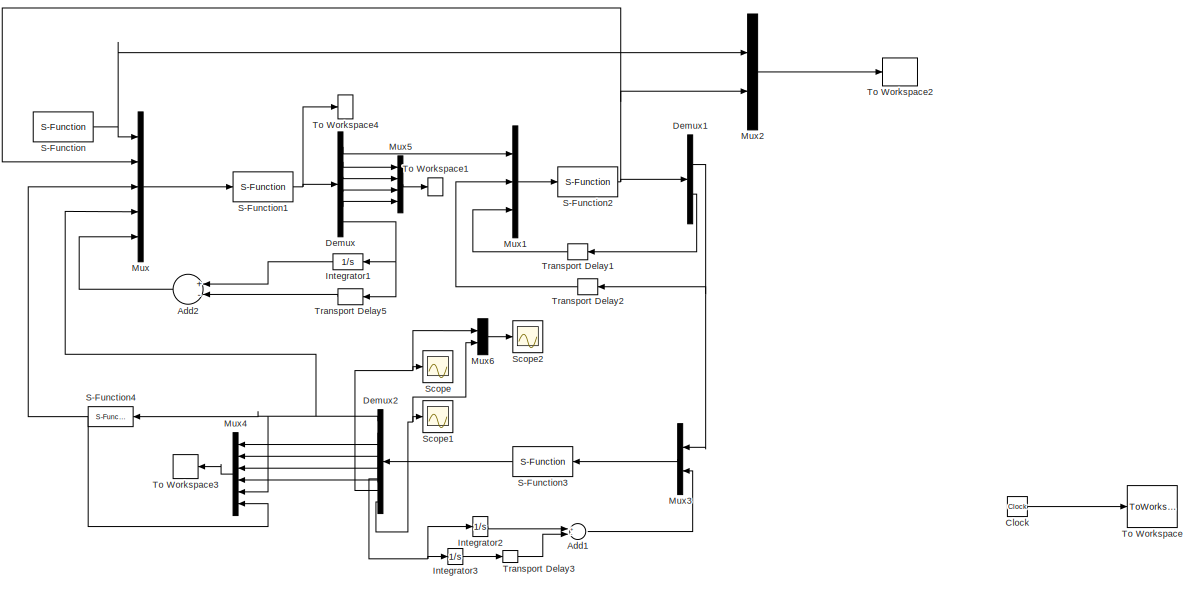
[diagram: root canvas - part 1/2, full width, top band]
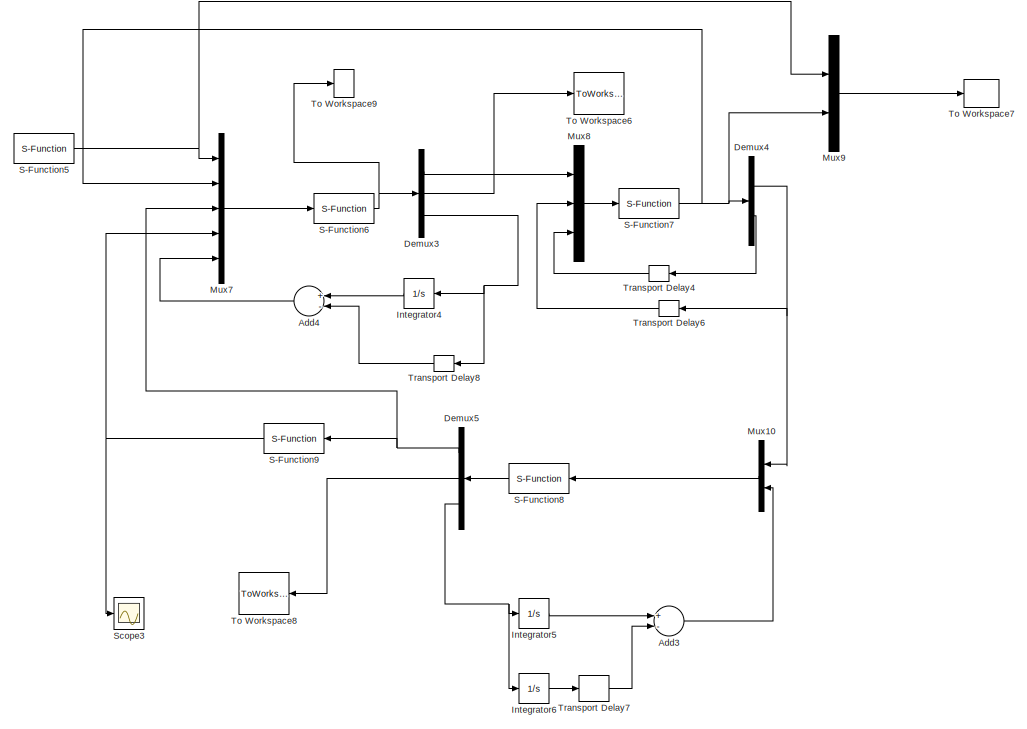
[diagram: root canvas - part 2/2, bottom center region]
MODEL slx_c8b71422ea86
KIND model
CONFIG AbsTol = auto
CONFIG EnableMultiTasking = off
CONFIG FixedStep = 0.012
CONFIG MaxStep = auto
CONFIG MinStep = auto
CONFIG RelTol = 1e-3
CONFIG SampleTimeConstraint = Unconstrained
CONFIG Solver = FixedStepAuto
CONFIG SolverName = FixedStepAuto
CONFIG StartTime = 0.0
CONFIG StopTime = 35
BLOCK [Sum] Add1
  InputSameDT = off
  Inputs = +-
  OutDataTypeStr = Inherit: Inherit via internal rule
  Ports = [2, 1]
  SaturateOnIntegerOverflow = off
BLOCK [Sum] Add2
  InputSameDT = off
  Inputs = +-
  OutDataTypeStr = Inherit: Inherit via internal rule
  Ports = [2, 1]
  SaturateOnIntegerOverflow = off
BLOCK [Sum] Add3
  InputSameDT = off
  Inputs = +-
  OutDataTypeStr = Inherit: Inherit via internal rule
  Ports = [2, 1]
  SaturateOnIntegerOverflow = off
BLOCK [Sum] Add4
  InputSameDT = off
  Inputs = +-
  OutDataTypeStr = Inherit: Inherit via internal rule
  Ports = [2, 1]
  SaturateOnIntegerOverflow = off
BLOCK [Clock] Clock
BLOCK [Demux] Demux
  DisplayOption = bar
  Outputs = 6
  Ports = [1, 6]
BLOCK [Demux] Demux1
  DisplayOption = bar
  Outputs = 2
  Ports = [1, 2]
BLOCK [Demux] Demux2
  DisplayOption = bar
  Outputs = 8
  Ports = [1, 8]
BLOCK [Demux] Demux3
  DisplayOption = bar
  Outputs = [1 2 1]
  Ports = [1, 3]
BLOCK [Demux] Demux4
  DisplayOption = bar
  Outputs = 2
  Ports = [1, 2]
BLOCK [Demux] Demux5
  DisplayOption = bar
  Outputs = [1 2 1]
  Ports = [1, 3]
BLOCK [Integrator] Integrator1
  Ports = [1, 1]
BLOCK [Integrator] Integrator2
  Ports = [1, 1]
BLOCK [Integrator] Integrator3
  Ports = [1, 1]
BLOCK [Integrator] Integrator4
  Ports = [1, 1]
BLOCK [Integrator] Integrator5
  Ports = [1, 1]
BLOCK [Integrator] Integrator6
  Ports = [1, 1]
BLOCK [Mux] Mux
  DisplayOption = bar
  Inputs = 5
  Ports = [5, 1]
BLOCK [Mux] Mux1
  DisplayOption = bar
  Inputs = 3
  Ports = [3, 1]
BLOCK [Mux] Mux10
  DisplayOption = bar
  Inputs = 2
  Ports = [2, 1]
BLOCK [Mux] Mux2
  DisplayOption = bar
  Inputs = 2
  Ports = [2, 1]
BLOCK [Mux] Mux3
  DisplayOption = bar
  Inputs = 2
  Ports = [2, 1]
BLOCK [Mux] Mux4
  DisplayOption = bar
  Inputs = 6
  Ports = [6, 1]
BLOCK [Mux] Mux5
  DisplayOption = bar
  Ports = [4, 1]
BLOCK [Mux] Mux6
  DisplayOption = bar
  Inputs = 2
  Ports = [2, 1]
BLOCK [Mux] Mux7
  DisplayOption = bar
  Inputs = 5
  Ports = [5, 1]
BLOCK [Mux] Mux8
  DisplayOption = bar
  Inputs = 3
  Ports = [3, 1]
BLOCK [Mux] Mux9
  DisplayOption = bar
  Inputs = 2
  Ports = [2, 1]
BLOCK [S-Function] S-Function
  EnableBusSupport = off
  FunctionName = idealinputkptY
  Ports = [0, 1]
  SFcnIsStateOwnerBlock = off
  SFunctionDeploymentMode = off
BLOCK [S-Function] S-Function1
  EnableBusSupport = off
  FunctionName = controlY
  Ports = [1, 1]
  SFcnIsStateOwnerBlock = off
  SFunctionDeploymentMode = off
BLOCK [S-Function] S-Function2
  EnableBusSupport = off
  FunctionName = plantkptY
  Ports = [1, 1]
  SFcnIsStateOwnerBlock = off
  SFunctionDeploymentMode = off
BLOCK [S-Function] S-Function3
  EnableBusSupport = off
  FunctionName = alfY
  Ports = [1, 1]
  SFcnIsStateOwnerBlock = off
  SFunctionDeploymentMode = off
BLOCK [S-Function] S-Function4
  EnableBusSupport = off
  FunctionName = b2Y
  Ports = [1, 1]
  SFcnIsStateOwnerBlock = off
  SFunctionDeploymentMode = off
BLOCK [S-Function] S-Function5
  EnableBusSupport = off
  FunctionName = idealinputR
  Ports = [0, 1]
  SFcnIsStateOwnerBlock = off
  SFunctionDeploymentMode = off
BLOCK [S-Function] S-Function6
  EnableBusSupport = off
  FunctionName = controlR
  Ports = [1, 1]
  SFcnIsStateOwnerBlock = off
  SFunctionDeploymentMode = off
BLOCK [S-Function] S-Function7
  EnableBusSupport = off
  FunctionName = plantR
  Ports = [1, 1]
  SFcnIsStateOwnerBlock = off
  SFunctionDeploymentMode = off
BLOCK [S-Function] S-Function8
  EnableBusSupport = off
  FunctionName = QalfR
  Ports = [1, 1]
  SFcnIsStateOwnerBlock = off
  SFunctionDeploymentMode = off
BLOCK [S-Function] S-Function9
  EnableBusSupport = off
  FunctionName = b2R
  Ports = [1, 1]
  SFcnIsStateOwnerBlock = off
  SFunctionDeploymentMode = off
BLOCK [Scope] Scope
  Floating = off
  NumInputPorts = 1
  Ports = [1]
  ScopeSpecificationString = Simulink.scopes.TimeScopeBlockCfg('CurrentConfiguration', extmgr.ConfigurationSet(extmgr.Configuration('Core','General UI',true),extmgr.Configuration('Core','Source UI',true),extmgr.Configuration('Sources','WiredSimulink',true),extmgr.Configuration('Visuals','Time Domain',true,'SerializedDisplays',{struct('MinYLimReal','-0.64376','MaxYLimReal','1.11138','YLabelReal','','MinYLimMag','0.00000','MaxY...<+1328ch>
BLOCK [Scope] Scope1
  Floating = off
  NumInputPorts = 1
  Ports = [1]
  ScopeSpecificationString = Simulink.scopes.TimeScopeBlockCfg('CurrentConfiguration', extmgr.ConfigurationSet(extmgr.Configuration('Core','General UI',true),extmgr.Configuration('Core','Source UI',true),extmgr.Configuration('Sources','WiredSimulink',true,'DataLoggingVariableName','ScopeData1'),extmgr.Configuration('Visuals','Time Domain',true,'SerializedDisplays',{struct('MinYLimReal','-0.90354','MaxYLimReal','4.18121','YLab...<+1401ch>
BLOCK [Scope] Scope2
  Floating = off
  NumInputPorts = 1
  Ports = [1]
  ScopeSpecificationString = Simulink.scopes.TimeScopeBlockCfg('CurrentConfiguration', extmgr.ConfigurationSet(extmgr.Configuration('Core','General UI',true),extmgr.Configuration('Core','Source UI',true),extmgr.Configuration('Sources','WiredSimulink',true,'DataLoggingVariableName','ScopeData2'),extmgr.Configuration('Visuals','Time Domain',true,'SerializedDisplays',{struct('MinYLimReal','-0.98586','MaxYLimReal','4.19036','YLab...<+1412ch>
BLOCK [Scope] Scope3
  Floating = off
  NumInputPorts = 1
  Ports = [1]
  ScopeSpecificationString = Simulink.scopes.TimeScopeBlockCfg('CurrentConfiguration', extmgr.ConfigurationSet(extmgr.Configuration('Core','General UI',true),extmgr.Configuration('Core','Source UI',true),extmgr.Configuration('Sources','WiredSimulink',true,'DataLoggingVariableName','ScopeData1'),extmgr.Configuration('Visuals','Time Domain',true,'SerializedDisplays',{struct('MinYLimReal','-1.95087','MaxYLimReal','2.03377','YLab...<+1370ch>
BLOCK [ToWorkspace] To Workspace
  MaxDataPoints = inf
  Ports = [1]
  SampleTime = -1
  Save2DSignal = 2-D array (concatenate along first dimension)
  VariableName = t
BLOCK [ToWorkspace] To Workspace1
  MaxDataPoints = inf
  Ports = [1]
  SampleTime = -1
  Save2DSignal = 2-D array (concatenate along first dimension)
  VariableName = y1
BLOCK [ToWorkspace] To Workspace2
  MaxDataPoints = inf
  Ports = [1]
  SampleTime = -1
  Save2DSignal = 2-D array (concatenate along first dimension)
  VariableName = y
BLOCK [ToWorkspace] To Workspace3
  MaxDataPoints = inf
  Ports = [1]
  SampleTime = -1
  Save2DSignal = 2-D array (concatenate along first dimension)
  VariableName = y2
BLOCK [ToWorkspace] To Workspace4
  MaxDataPoints = inf
  Ports = [1]
  SampleTime = -1
  Save2DSignal = 2-D array (concatenate along first dimension)
  VariableName = u
BLOCK [ToWorkspace] To Workspace6
  MaxDataPoints = inf
  Ports = [1]
  SampleTime = -1
  Save2DSignal = 2-D array (concatenate along first dimension)
  VariableName = y3
BLOCK [ToWorkspace] To Workspace7
  MaxDataPoints = inf
  Ports = [1]
  SampleTime = -1
  Save2DSignal = 2-D array (concatenate along first dimension)
  VariableName = y4
BLOCK [ToWorkspace] To Workspace8
  MaxDataPoints = inf
  Ports = [1]
  SampleTime = -1
  Save2DSignal = 2-D array (concatenate along first dimension)
  VariableName = y5
BLOCK [ToWorkspace] To Workspace9
  MaxDataPoints = inf
  Ports = [1]
  SampleTime = -1
  Save2DSignal = 2-D array (concatenate along first dimension)
  VariableName = u1
BLOCK [TransportDelay] Transport Delay1
  DelayTime = 1.5
  Ports = [1, 1]
BLOCK [TransportDelay] Transport Delay2
  Ports = [1, 1]
BLOCK [TransportDelay] Transport Delay3
  DelayTime = 1.6
  Ports = [1, 1]
BLOCK [TransportDelay] Transport Delay4
  DelayTime = 1.5
  Ports = [1, 1]
BLOCK [TransportDelay] Transport Delay5
  DelayTime = 1.6
  Ports = [1, 1]
BLOCK [TransportDelay] Transport Delay6
  Ports = [1, 1]
BLOCK [TransportDelay] Transport Delay7
  DelayTime = 1.6
  Ports = [1, 1]
BLOCK [TransportDelay] Transport Delay8
  DelayTime = 1.6
  Ports = [1, 1]
LINE Add1:1 -> Mux3:2
LINE Add2:1 -> Mux:5
LINE Add3:1 -> Mux10:2
LINE Add4:1 -> Mux7:5
LINE Clock:1 -> To Workspace:1
NET Demux1:1 -> Mux3:1, Transport Delay2:1
LINE Demux1:2 -> Transport Delay1:1
NET Demux2:1 -> Mux4:5, Mux:4, S-Function4:1
LINE Demux2:2 -> Mux4:1
LINE Demux2:3 -> Mux4:2
LINE Demux2:4 -> Mux4:3
LINE Demux2:5 -> Mux4:4
NET Demux2:6 -> Integrator2:1, Integrator3:1
NET Demux2:7 -> Mux6:1, Scope:1
NET Demux2:8 -> Mux6:2, Scope1:1
LINE Demux3:1 -> Mux8:1
LINE Demux3:2 -> To Workspace6:1
NET Demux3:3 -> Integrator4:1, Transport Delay8:1
NET Demux4:1 -> Mux10:1, Transport Delay6:1
LINE Demux4:2 -> Transport Delay4:1
NET Demux5:1 -> Mux7:3, S-Function9:1
LINE Demux5:2 -> To Workspace8:1
NET Demux5:3 -> Integrator5:1, Integrator6:1
LINE Demux:1 -> Mux1:1
LINE Demux:2 -> Mux5:1
LINE Demux:3 -> Mux5:2
LINE Demux:4 -> Mux5:3
LINE Demux:5 -> Mux5:4
NET Demux:6 -> Integrator1:1, Transport Delay5:1
LINE Integrator1:1 -> Add2:1
LINE Integrator2:1 -> Add1:1
LINE Integrator3:1 -> Transport Delay3:1
LINE Integrator4:1 -> Add4:1
LINE Integrator5:1 -> Add3:1
LINE Integrator6:1 -> Transport Delay7:1
LINE Mux10:1 -> S-Function8:1
LINE Mux1:1 -> S-Function2:1
LINE Mux2:1 -> To Workspace2:1
LINE Mux3:1 -> S-Function3:1
LINE Mux4:1 -> To Workspace3:1
LINE Mux5:1 -> To Workspace1:1
LINE Mux6:1 -> Scope2:1
LINE Mux7:1 -> S-Function6:1
LINE Mux8:1 -> S-Function7:1
LINE Mux9:1 -> To Workspace7:1
LINE Mux:1 -> S-Function1:1
NET S-Function1:1 -> Demux:1, To Workspace4:1
NET S-Function2:1 -> Demux1:1, Mux2:2, Mux:2
LINE S-Function3:1 -> Demux2:1
NET S-Function4:1 -> Mux4:6, Mux:3
NET S-Function5:1 -> Mux7:1, Mux9:1
NET S-Function6:1 -> Demux3:1, To Workspace9:1
NET S-Function7:1 -> Demux4:1, Mux7:2, Mux9:2
LINE S-Function8:1 -> Demux5:1
NET S-Function9:1 -> Mux7:4, Scope3:1
NET S-Function:1 -> Mux2:1, Mux:1
LINE Transport Delay1:1 -> Mux1:3
LINE Transport Delay2:1 -> Mux1:2
LINE Transport Delay3:1 -> Add1:2
LINE Transport Delay4:1 -> Mux8:3
LINE Transport Delay5:1 -> Add2:2
LINE Transport Delay6:1 -> Mux8:2
LINE Transport Delay7:1 -> Add3:2
LINE Transport Delay8:1 -> Add4:2
note: NET lines group one-source signal fan-out (src -> all destinations, sorted); 1:1 wires keep LINE
